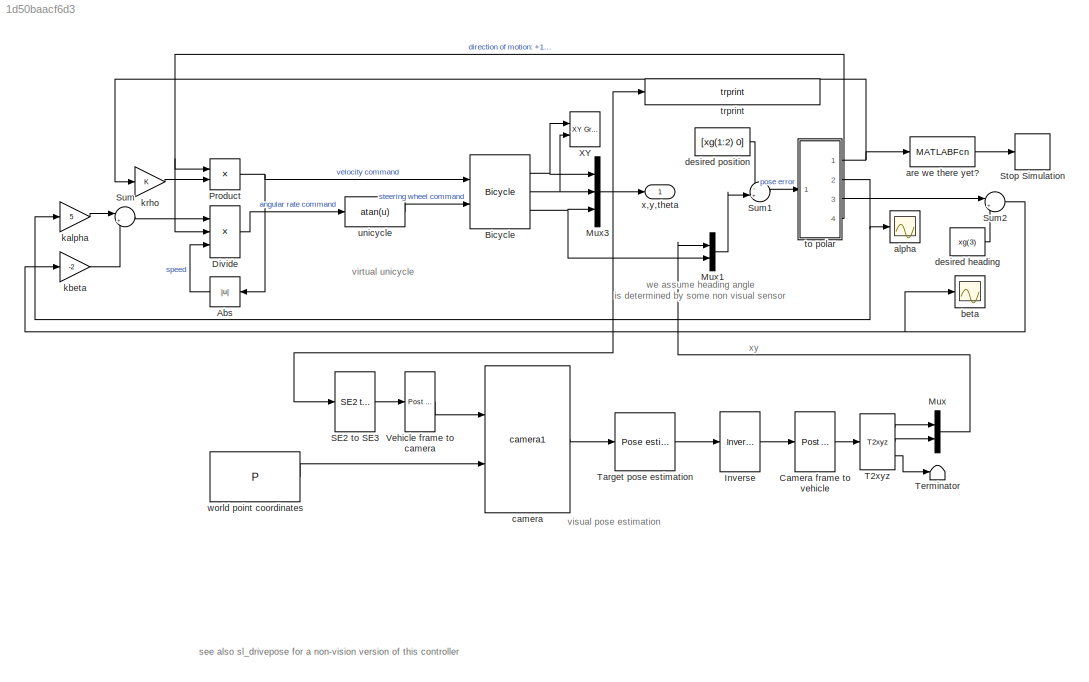
MODEL slx_1d50baacf6d3
KIND model
CONFIG AbsTol = auto
CONFIG FixedStep = auto
CONFIG InitFcn = camera = CentralCamera('default', 'focal', 0.002);\nP = [4 10 3; 9 9 2; 6 8 3; 8 10 4; 10 7 2]';\nT_VC = transl(0.2, 0.1, 0.5)*troty(pi/2)*trotz(-pi/2);\nx0 = [2 2 0];\nxg = [5 5 pi/2];
CONFIG MaxStep = 0.05
CONFIG MinStep = auto
CONFIG RelTol = 1e-3
CONFIG SampleTimeConstraint = Unconstrained
CONFIG Solver = ode45
CONFIG SolverMode = Auto
CONFIG SolverName = ode45
CONFIG StartTime = 0.0
CONFIG StopTime = 10
BLOCK [Abs] Abs
  SaturateOnIntegerOverflow = off
BLOCK [Reference] Bicycle  REF=roblocks/Vehicles/Bicycle  (lib defined in mdl_2a292b13c81b, mdl_69400f8cfe22, +12 more)
  Ports = [2, 3]
  SourceBlock = roblocks/Vehicles/Bicycle
BLOCK [Reference] Camera frame to vehicle  REF=roblocks/Toolbox/Post multiply  (lib defined in mdl_2a292b13c81b, mdl_69400f8cfe22, +12 more)
  Ports = [1, 1]
  SourceBlock = roblocks/Toolbox/Post multiply
BLOCK [Product] Divide
  InputSameDT = off
  Inputs = **/
  OutDataTypeStr = Inherit: Inherit via internal rule
  Ports = [3, 1]
  RndMeth = Floor
  SaturateOnIntegerOverflow = off
BLOCK [Reference] Inverse  REF=roblocks/Toolbox/Inverse  (lib defined in mdl_2a292b13c81b, mdl_69400f8cfe22, +12 more)
  Ports = [1, 1]
  SourceBlock = roblocks/Toolbox/Inverse
BLOCK [Mux] Mux
  DisplayOption = bar
  Inputs = 2
  Ports = [2, 1]
BLOCK [Mux] Mux1
  DisplayOption = bar
  Inputs = 2
  Ports = [2, 1]
BLOCK [Mux] Mux3
  DisplayOption = bar
  Inputs = 3
  Ports = [3, 1]
BLOCK [Product] Product
  InputSameDT = off
  OutDataTypeStr = Inherit: Inherit via internal rule
  Ports = [2, 1]
  SaturateOnIntegerOverflow = off
BLOCK [Reference] SE2 to SE3  REF=roblocks/Toolbox/SE2 to SE3  (lib defined in mdl_2a292b13c81b, mdl_69400f8cfe22, +12 more)
  Ports = [1, 1]
  SourceBlock = roblocks/Toolbox/SE2 to SE3
BLOCK [Stop] Stop Simulation
BLOCK [Sum] Sum
  IconShape = round
  InputSameDT = off
  Inputs = |++
  OutDataTypeStr = Inherit: Inherit via internal rule
  Ports = [2, 1]
  SaturateOnIntegerOverflow = off
BLOCK [Sum] Sum1
  IconShape = round
  InputSameDT = off
  Inputs = -+|
  OutDataTypeStr = Inherit: Inherit via internal rule
  Ports = [2, 1]
  SaturateOnIntegerOverflow = off
BLOCK [Sum] Sum2
  IconShape = round
  InputSameDT = off
  Inputs = |++
  OutDataTypeStr = Inherit: Inherit via internal rule
  Ports = [2, 1]
  SaturateOnIntegerOverflow = off
BLOCK [Reference] T2xyz  REF=roblocks/Toolbox/T2xyz  (lib defined in mdl_2a292b13c81b, mdl_69400f8cfe22, +12 more)
  Ports = [1, 3]
  SourceBlock = roblocks/Toolbox/T2xyz
BLOCK [Reference] Target pose estimation  REF=roblocks/Vision/Pose estimation  (lib defined in mdl_2a292b13c81b, mdl_69400f8cfe22, +12 more)
  Ports = [1, 1]
  SourceBlock = roblocks/Vision/Pose estimation
BLOCK [Terminator] Terminator
BLOCK [Reference] Vehicle frame to camera  REF=roblocks/Toolbox/Post multiply  (lib defined in mdl_2a292b13c81b, mdl_69400f8cfe22, +12 more)
  Ports = [1, 1]
  SourceBlock = roblocks/Toolbox/Post multiply
BLOCK [Reference] XY  REF=simulink/Sinks/XY Graph
  Ports = [2]
  SourceBlock = simulink/Sinks/XY Graph
  SourceType = XY scope.
BLOCK [Scope] alpha
  Ports = [1]
  ScopeSpecificationString = C++SS(StrPVP('Location','[182, 439, 506, 678]'),StrPVP('Open','off'),MxPVP('AxesTitles',24,'struct(''axes1'',''%<SignalLabel>'')'),MxPVP('ScopeGraphics',28,'struct(''FigureColor'',''[0.5 0.5 0.5]'',''AxesColor'',''[0 0 0]'',''AxesTickColor'',''[1 1 1]'',''LineColors'',''[1 1 0;1 0 1;0 1 1;1 0 0;0 1 0;0 0 1]'',''LineStyles'',''-|-|-|-|-|-'',''LineWidths'',''[0.5 0.5 0.5 0.5 0.5 0.5]'',''MarkerStyle...<+415ch>
BLOCK [MATLABFcn] are we there yet?
  MATLABFcn = double(abs(u)<0.08)
  OutputSignalType = real
  Ports = [1, 1]
BLOCK [Scope] beta
  Ports = [1]
  ScopeSpecificationString = C++SS(StrPVP('Location','[513, 443, 837, 682]'),StrPVP('Open','off'),MxPVP('AxesTitles',24,'struct(''axes1'',''%<SignalLabel>'')'),MxPVP('ScopeGraphics',28,'struct(''FigureColor'',''[0.5 0.5 0.5]'',''AxesColor'',''[0 0 0]'',''AxesTickColor'',''[1 1 1]'',''LineColors'',''[1 1 0;1 0 1;0 1 1;1 0 0;0 1 0;0 0 1]'',''LineStyles'',''-|-|-|-|-|-'',''LineWidths'',''[0.5 0.5 0.5 0.5 0.5 0.5]'',''MarkerStyle...<+446ch>
BLOCK [Reference] camera  REF=roblocks/Vision/camera1  (lib defined in mdl_2a292b13c81b, mdl_69400f8cfe22, +12 more)
  Ports = [2, 1]
  SourceBlock = roblocks/Vision/camera1
BLOCK [Constant] desired heading
  Value = xg(3)
BLOCK [Constant] desired position
  Value = [xg(1:2) 0]
BLOCK [Gain] kalpha
  Gain = 5
  OutDataTypeStr = Inherit: Inherit via internal rule
  ParamDataTypeStr = Inherit: Inherit via internal rule
  SaturateOnIntegerOverflow = off
BLOCK [Gain] kbeta
  Gain = -2
  OutDataTypeStr = Inherit: Inherit via internal rule
  ParamDataTypeStr = Inherit: Inherit via internal rule
  SaturateOnIntegerOverflow = off
BLOCK [Gain] krho
  OutDataTypeStr = Inherit: Inherit via internal rule
  ParamDataTypeStr = Inherit: Inherit via internal rule
  SaturateOnIntegerOverflow = off
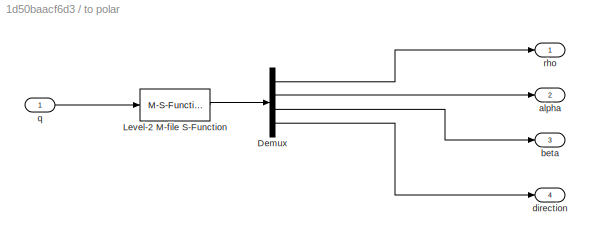
BLOCK [SubSystem] to polar
  Ports = [1, 4]
  RequestExecContextInheritance = off
  Variant = off
BLOCK [Demux] to polar/Demux
  DisplayOption = bar
  Ports = [1, 4]
BLOCK [M-S-Function] to polar/Level-2 M-file S-Function
  FunctionName = polar_sfunc
  Ports = [1, 1]
BLOCK [Outport] to polar/alpha
  IconDisplay = Port number
  Port = 2
BLOCK [Outport] to polar/beta
  IconDisplay = Port number
  Port = 3
BLOCK [Outport] to polar/direction
  IconDisplay = Port number
  Port = 4
BLOCK [Inport] to polar/q
  IconDisplay = Port number
BLOCK [Outport] to polar/rho
  IconDisplay = Port number
BLOCK [Reference] trprint  REF=roblocks/Toolbox/trprint  (lib defined in mdl_2a292b13c81b, mdl_69400f8cfe22, +12 more)
  Ports = [1]
  SourceBlock = roblocks/Toolbox/trprint
BLOCK [Fcn] unicycle 
  Expr = atan(u)
BLOCK [Constant] world point coordinates
  Value = P
  VectorParams1D = off
BLOCK [Outport] x,y,theta
  IconDisplay = Port number
ANNOTATION (root): visual pose estimation
ANNOTATION (root): virtual unicycle
ANNOTATION (root): see also sl_drivepose for a non-vision version of this controller
ANNOTATION (root): we assume heading angle is determined by some non visual sensor
ANNOTATION (root): xy
LINE Abs:1 -> Divide:3
NET Bicycle:1 -> Mux3:1, XY:1
NET Bicycle:2 -> Mux3:2, XY:2
NET Bicycle:3 -> Mux1:2, Mux3:3
LINE Camera frame to vehicle:1 -> T2xyz:1
LINE Divide:1 -> unicycle :1
LINE Inverse:1 -> Camera frame to vehicle:1
LINE Mux1:1 -> Sum1:2
NET Mux3:1 -> SE2 to SE3:1, trprint:1, x,y,theta:1
LINE Mux:1 -> Mux1:1
NET Product:1 -> Abs:1, Bicycle:1
LINE SE2 to SE3:1 -> Vehicle frame to camera:1
LINE Sum1:1 -> to polar:1
NET Sum2:1 -> beta:1, kbeta:1
LINE Sum:1 -> Divide:1
LINE T2xyz:1 -> Mux:1
LINE T2xyz:2 -> Mux:2
LINE T2xyz:3 -> Terminator:1
LINE Target pose estimation:1 -> Inverse:1
LINE Vehicle frame to camera:1 -> camera:1
LINE are we there yet?:1 -> Stop Simulation:1
LINE camera:1 -> Target pose estimation:1
LINE desired heading:1 -> Sum2:2
LINE desired position:1 -> Sum1:1
LINE kalpha:1 -> Sum:1
LINE kbeta:1 -> Sum:2
LINE krho:1 -> Product:2
LINE to polar/Demux:1 -> to polar/rho:1
LINE to polar/Demux:2 -> to polar/alpha:1
LINE to polar/Demux:3 -> to polar/beta:1
LINE to polar/Demux:4 -> to polar/direction:1
LINE to polar/Level-2 M-file S-Function:1 -> to polar/Demux:1
LINE to polar/q:1 -> to polar/Level-2 M-file S-Function:1
NET to polar:1 -> are we there yet?:1, krho:1
NET to polar:2 -> alpha:1, kalpha:1
LINE to polar:3 -> Sum2:1
NET to polar:4 -> Divide:2, Product:1
LINE unicycle :1 -> Bicycle:2
LINE world point coordinates:1 -> camera:2
note: NET lines group one-source signal fan-out (src -> all destinations, sorted); 1:1 wires keep LINE
